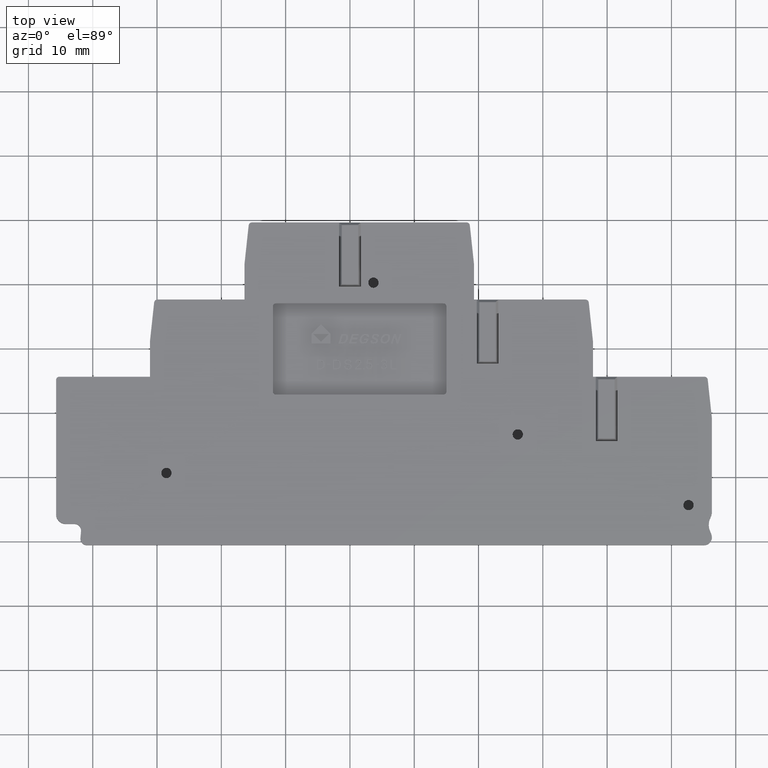
[diagram: clean part render]
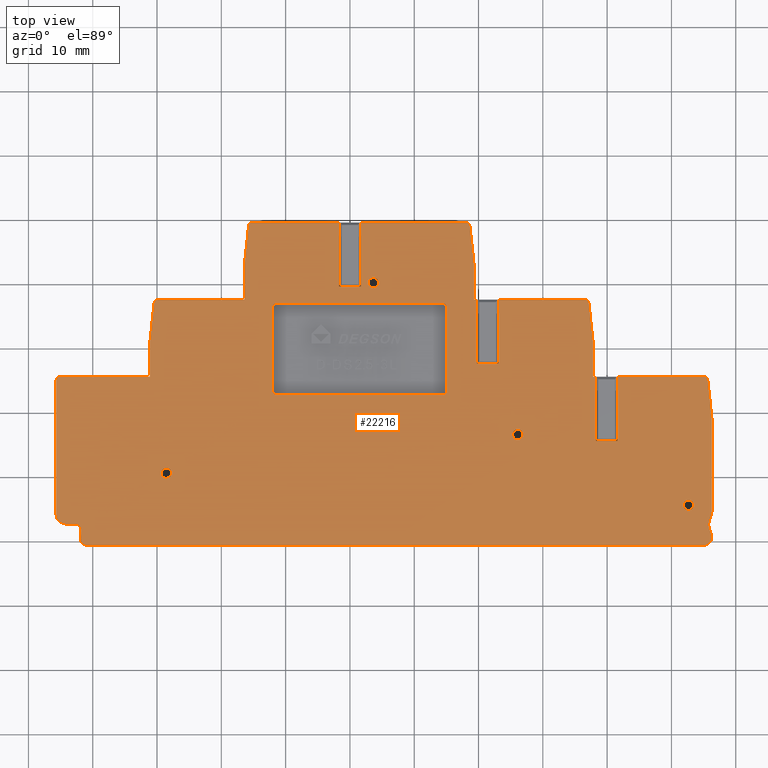
[diagram: same view with one face highlighted and labeled with its STEP entity id]
A machine part, top view. The second image highlights one B-rep face of the part: STEP entity #22216.
In plain terms, the highlighted planar face has unit normal (0, 0, -1).
Its self-contained STEP definition (entity closure, byte-faithful):
#486=PLANE('',#23593);
#927=CIRCLE('',#22852,1.);
#929=CIRCLE('',#22856,1.5);
#930=CIRCLE('',#22858,0.999999999999994);
#1061=CIRCLE('',#23412,0.5);
#1063=CIRCLE('',#23416,0.5);
#1065=CIRCLE('',#23420,0.5);
#1067=CIRCLE('',#23424,0.5);
#1070=CIRCLE('',#23430,0.799999999999997);
#1072=CIRCLE('',#23434,0.800000000000001);
#1074=CIRCLE('',#23438,0.8);
#1076=CIRCLE('',#23442,0.800000000000001);
#1078=CIRCLE('',#23445,1.2);
#1079=CIRCLE('',#23447,2.);
#1081=CIRCLE('',#23450,2.);
#1083=CIRCLE('',#23453,2.5);
#1102=CIRCLE('',#23494,0.5);
#1103=CIRCLE('',#23498,2.);
#1106=CIRCLE('',#23503,0.5);
#1107=CIRCLE('',#23507,2.);
#1110=CIRCLE('',#23512,0.5);
#1111=CIRCLE('',#23518,0.5);
#1114=CIRCLE('',#23523,2.);
#1115=CIRCLE('',#23530,0.5);
#1118=CIRCLE('',#23535,2.);
#1119=CIRCLE('',#23542,0.5);
#1122=CIRCLE('',#23547,2.);
#1520=LINE('',#29912,#4058);
#1525=LINE('',#29931,#4063);
#2586=LINE('',#33186,#5124);
#2590=LINE('',#33198,#5128);
#2594=LINE('',#33210,#5132);
#2598=LINE('',#33222,#5136);
#2605=LINE('',#33328,#5143);
#2609=LINE('',#33340,#5147);
#2614=LINE('',#33350,#5152);
#2616=LINE('',#33358,#5154);
#2620=LINE('',#33370,#5158);
#2625=LINE('',#33380,#5163);
#2627=LINE('',#33388,#5165);
#2631=LINE('',#33400,#5169);
#2635=LINE('',#33408,#5173);
#2653=LINE('',#33447,#5191);
#2656=LINE('',#33457,#5194);
#2664=LINE('',#33473,#5202);
#2668=LINE('',#33481,#5206);
#2678=LINE('',#33504,#5216);
#2683=LINE('',#33518,#5221);
#2691=LINE('',#33534,#5229);
#2695=LINE('',#33542,#5233);
#2705=LINE('',#33565,#5243);
#2710=LINE('',#33579,#5248);
#2717=LINE('',#33593,#5255);
#2730=LINE('',#33619,#5268);
#2737=LINE('',#33633,#5275);
#2747=LINE('',#33653,#5285);
#2754=LINE('',#33667,#5292);
#2761=LINE('',#33680,#5299);
#2763=LINE('',#33683,#5301);
#2765=LINE('',#33686,#5303);
#2782=LINE('',#33725,#5320);
#2783=LINE('',#33898,#5321);
#4058=VECTOR('',#24360,1000.);
#4063=VECTOR('',#24379,1000.);
#5124=VECTOR('',#26548,1000.);
#5128=VECTOR('',#26560,1000.);
#5132=VECTOR('',#26572,1000.);
#5136=VECTOR('',#26584,1000.);
#5143=VECTOR('',#26721,1000.);
#5147=VECTOR('',#26733,1000.);
#5152=VECTOR('',#26740,1000.);
#5154=VECTOR('',#26750,1000.);
#5158=VECTOR('',#26762,1000.);
#5163=VECTOR('',#26769,1000.);
#5165=VECTOR('',#26779,1000.);
#5169=VECTOR('',#26791,1000.);
#5173=VECTOR('',#26795,1000.);
#5191=VECTOR('',#26827,1000.);
#5194=VECTOR('',#26838,1000.);
#5202=VECTOR('',#26848,1000.);
#5206=VECTOR('',#26852,1000.);
#5216=VECTOR('',#26876,1000.);
#5221=VECTOR('',#26889,1000.);
#5229=VECTOR('',#26899,1000.);
#5233=VECTOR('',#26903,1000.);
#5243=VECTOR('',#26927,1000.);
#5248=VECTOR('',#26940,1000.);
#5255=VECTOR('',#26951,1000.);
#5268=VECTOR('',#26976,1000.);
#5275=VECTOR('',#26987,1000.);
#5285=VECTOR('',#27007,1000.);
#5292=VECTOR('',#27018,1000.);
#5299=VECTOR('',#27033,1000.);
#5301=VECTOR('',#27037,1000.);
#5303=VECTOR('',#27041,1000.);
#5320=VECTOR('',#27090,1000.);
#5321=VECTOR('',#27101,1000.);
#9619=ORIENTED_EDGE('',*,*,#13169,.F.);
#9620=ORIENTED_EDGE('',*,*,#13166,.T.);
#9621=ORIENTED_EDGE('',*,*,#14800,.F.);
#9622=ORIENTED_EDGE('',*,*,#14534,.T.);
#9623=ORIENTED_EDGE('',*,*,#14540,.T.);
#9624=ORIENTED_EDGE('',*,*,#14543,.T.);
#9625=ORIENTED_EDGE('',*,*,#14537,.T.);
#9626=ORIENTED_EDGE('',*,*,#14760,.F.);
#9627=ORIENTED_EDGE('',*,*,#14685,.T.);
#9628=ORIENTED_EDGE('',*,*,#14681,.T.);
#9629=ORIENTED_EDGE('',*,*,#14678,.T.);
#9630=ORIENTED_EDGE('',*,*,#14669,.F.);
#9631=ORIENTED_EDGE('',*,*,#14732,.F.);
#9632=ORIENTED_EDGE('',*,*,#14739,.T.);
#9633=ORIENTED_EDGE('',*,*,#14725,.F.);
#9634=ORIENTED_EDGE('',*,*,#14665,.F.);
#9635=ORIENTED_EDGE('',*,*,#14657,.F.);
#9636=ORIENTED_EDGE('',*,*,#14654,.T.);
#9637=ORIENTED_EDGE('',*,*,#14650,.T.);
#9638=ORIENTED_EDGE('',*,*,#14647,.T.);
#9639=ORIENTED_EDGE('',*,*,#14638,.F.);
#9640=ORIENTED_EDGE('',*,*,#14715,.F.);
#9641=ORIENTED_EDGE('',*,*,#14741,.T.);
#9642=ORIENTED_EDGE('',*,*,#14708,.T.);
#9643=ORIENTED_EDGE('',*,*,#14634,.F.);
#9644=ORIENTED_EDGE('',*,*,#14626,.F.);
#9645=ORIENTED_EDGE('',*,*,#14623,.T.);
#9646=ORIENTED_EDGE('',*,*,#14621,.T.);
#9647=ORIENTED_EDGE('',*,*,#14616,.T.);
#9648=ORIENTED_EDGE('',*,*,#14601,.F.);
#9649=ORIENTED_EDGE('',*,*,#14695,.F.);
#9650=ORIENTED_EDGE('',*,*,#14743,.T.);
#9651=ORIENTED_EDGE('',*,*,#14688,.F.);
#9652=ORIENTED_EDGE('',*,*,#14597,.F.);
#9653=ORIENTED_EDGE('',*,*,#14595,.T.);
#9654=ORIENTED_EDGE('',*,*,#14591,.T.);
#9655=ORIENTED_EDGE('',*,*,#14588,.T.);
#9656=ORIENTED_EDGE('',*,*,#14587,.F.);
#9657=ORIENTED_EDGE('',*,*,#14582,.F.);
#9658=ORIENTED_EDGE('',*,*,#14580,.T.);
#9659=ORIENTED_EDGE('',*,*,#14576,.T.);
#9660=ORIENTED_EDGE('',*,*,#14573,.T.);
#9661=ORIENTED_EDGE('',*,*,#14572,.F.);
#9662=ORIENTED_EDGE('',*,*,#14567,.F.);
#9663=ORIENTED_EDGE('',*,*,#14565,.T.);
#9664=ORIENTED_EDGE('',*,*,#14561,.F.);
#9665=ORIENTED_EDGE('',*,*,#13174,.F.);
#9666=ORIENTED_EDGE('',*,*,#13178,.F.);
#9667=ORIENTED_EDGE('',*,*,#13175,.F.);
#9668=ORIENTED_EDGE('',*,*,#14525,.F.);
#9669=ORIENTED_EDGE('',*,*,#14529,.F.);
#9670=ORIENTED_EDGE('',*,*,#14531,.F.);
#9671=ORIENTED_EDGE('',*,*,#14527,.F.);
#9672=ORIENTED_EDGE('',*,*,#14522,.F.);
#9673=ORIENTED_EDGE('',*,*,#14500,.F.);
#9674=ORIENTED_EDGE('',*,*,#14504,.F.);
#9675=ORIENTED_EDGE('',*,*,#14507,.F.);
#9676=ORIENTED_EDGE('',*,*,#14510,.F.);
#9677=ORIENTED_EDGE('',*,*,#14513,.F.);
#9678=ORIENTED_EDGE('',*,*,#14516,.F.);
#9679=ORIENTED_EDGE('',*,*,#14519,.F.);
#13166=EDGE_CURVE('',#16451,#16450,#927,.T.);
#13169=EDGE_CURVE('',#16451,#16453,#1520,.T.);
#13174=EDGE_CURVE('',#16457,#16455,#929,.T.);
#13175=EDGE_CURVE('',#16453,#16458,#930,.T.);
#13178=EDGE_CURVE('',#16458,#16457,#1525,.T.);
#14500=EDGE_CURVE('',#17366,#17367,#1061,.T.);
#14504=EDGE_CURVE('',#17370,#17366,#2586,.T.);
#14507=EDGE_CURVE('',#17372,#17370,#1063,.T.);
#14510=EDGE_CURVE('',#17374,#17372,#2590,.T.);
#14513=EDGE_CURVE('',#17376,#17374,#1065,.T.);
#14516=EDGE_CURVE('',#17378,#17376,#2594,.T.);
#14519=EDGE_CURVE('',#17380,#17378,#1067,.T.);
#14522=EDGE_CURVE('',#17367,#17380,#2598,.T.);
#14525=EDGE_CURVE('',#17383,#17383,#1070,.T.);
#14527=EDGE_CURVE('',#17385,#17385,#1072,.T.);
#14529=EDGE_CURVE('',#17387,#17387,#1074,.T.);
#14531=EDGE_CURVE('',#17389,#17389,#1076,.T.);
#14534=EDGE_CURVE('',#17393,#17392,#1078,.T.);
#14537=EDGE_CURVE('',#17396,#17394,#1079,.T.);
#14540=EDGE_CURVE('',#17392,#17398,#1081,.T.);
#14543=EDGE_CURVE('',#17398,#17396,#1083,.T.);
#14561=EDGE_CURVE('',#16455,#17416,#2605,.T.);
#14565=EDGE_CURVE('',#17419,#17416,#1102,.T.);
#14567=EDGE_CURVE('',#17419,#17420,#2609,.T.);
#14572=EDGE_CURVE('',#17420,#17422,#2614,.T.);
#14573=EDGE_CURVE('',#17424,#17422,#1103,.T.);
#14576=EDGE_CURVE('',#17426,#17424,#2616,.T.);
#14580=EDGE_CURVE('',#17429,#17426,#1106,.T.);
#14582=EDGE_CURVE('',#17429,#17430,#2620,.T.);
#14587=EDGE_CURVE('',#17430,#17432,#2625,.T.);
#14588=EDGE_CURVE('',#17434,#17432,#1107,.T.);
#14591=EDGE_CURVE('',#17436,#17434,#2627,.T.);
#14595=EDGE_CURVE('',#17439,#17436,#1110,.T.);
#14597=EDGE_CURVE('',#17439,#17440,#2631,.T.);
#14601=EDGE_CURVE('',#17443,#17444,#2635,.T.);
#14616=EDGE_CURVE('',#17454,#17444,#1111,.T.);
#14621=EDGE_CURVE('',#17456,#17454,#2653,.T.);
#14623=EDGE_CURVE('',#17459,#17456,#1114,.T.);
#14626=EDGE_CURVE('',#17459,#17461,#2656,.T.);
#14634=EDGE_CURVE('',#17461,#17468,#2664,.T.);
#14638=EDGE_CURVE('',#17471,#17462,#2668,.T.);
#14647=EDGE_CURVE('',#17476,#17462,#1115,.T.);
#14650=EDGE_CURVE('',#17478,#17476,#2678,.T.);
#14654=EDGE_CURVE('',#17481,#17478,#1118,.T.);
#14657=EDGE_CURVE('',#17481,#17483,#2683,.T.);
#14665=EDGE_CURVE('',#17483,#17490,#2691,.T.);
#14669=EDGE_CURVE('',#17493,#17484,#2695,.T.);
#14678=EDGE_CURVE('',#17498,#17484,#1119,.T.);
#14681=EDGE_CURVE('',#17500,#17498,#2705,.T.);
#14685=EDGE_CURVE('',#17503,#17500,#1122,.T.);
#14688=EDGE_CURVE('',#17440,#17505,#2710,.T.);
#14695=EDGE_CURVE('',#17509,#17443,#2717,.T.);
#14708=EDGE_CURVE('',#17517,#17468,#2730,.T.);
#14715=EDGE_CURVE('',#17521,#17471,#2737,.T.);
#14725=EDGE_CURVE('',#17490,#17527,#2747,.T.);
#14732=EDGE_CURVE('',#17531,#17493,#2754,.T.);
#14739=EDGE_CURVE('',#17531,#17527,#2761,.T.);
#14741=EDGE_CURVE('',#17521,#17517,#2763,.T.);
#14743=EDGE_CURVE('',#17509,#17505,#2765,.T.);
#14760=EDGE_CURVE('',#17503,#17394,#2782,.T.);
#14800=EDGE_CURVE('',#17393,#16450,#2783,.T.);
#16450=VERTEX_POINT('',#29905);
#16451=VERTEX_POINT('',#29907);
#16453=VERTEX_POINT('',#29913);
#16455=VERTEX_POINT('',#29918);
#16457=VERTEX_POINT('',#29922);
#16458=VERTEX_POINT('',#29926);
#17366=VERTEX_POINT('',#33178);
#17367=VERTEX_POINT('',#33179);
#17370=VERTEX_POINT('',#33187);
#17372=VERTEX_POINT('',#33193);
#17374=VERTEX_POINT('',#33199);
#17376=VERTEX_POINT('',#33205);
#17378=VERTEX_POINT('',#33211);
#17380=VERTEX_POINT('',#33217);
#17383=VERTEX_POINT('',#33229);
#17385=VERTEX_POINT('',#33235);
#17387=VERTEX_POINT('',#33241);
#17389=VERTEX_POINT('',#33247);
#17392=VERTEX_POINT('',#33253);
#17393=VERTEX_POINT('',#33255);
#17394=VERTEX_POINT('',#33259);
#17396=VERTEX_POINT('',#33262);
#17398=VERTEX_POINT('',#33268);
#17416=VERTEX_POINT('',#33329);
#17419=VERTEX_POINT('',#33337);
#17420=VERTEX_POINT('',#33341);
#17422=VERTEX_POINT('',#33347);
#17424=VERTEX_POINT('',#33353);
#17426=VERTEX_POINT('',#33359);
#17429=VERTEX_POINT('',#33367);
#17430=VERTEX_POINT('',#33371);
#17432=VERTEX_POINT('',#33377);
#17434=VERTEX_POINT('',#33383);
#17436=VERTEX_POINT('',#33389);
#17439=VERTEX_POINT('',#33397);
#17440=VERTEX_POINT('',#33401);
#17443=VERTEX_POINT('',#33407);
#17444=VERTEX_POINT('',#33409);
#17454=VERTEX_POINT('',#33438);
#17456=VERTEX_POINT('',#33444);
#17459=VERTEX_POINT('',#33452);
#17461=VERTEX_POINT('',#33458);
#17462=VERTEX_POINT('',#33462);
#17468=VERTEX_POINT('',#33474);
#17471=VERTEX_POINT('',#33480);
#17476=VERTEX_POINT('',#33499);
#17478=VERTEX_POINT('',#33505);
#17481=VERTEX_POINT('',#33513);
#17483=VERTEX_POINT('',#33519);
#17484=VERTEX_POINT('',#33523);
#17490=VERTEX_POINT('',#33535);
#17493=VERTEX_POINT('',#33541);
#17498=VERTEX_POINT('',#33560);
#17500=VERTEX_POINT('',#33566);
#17503=VERTEX_POINT('',#33574);
#17505=VERTEX_POINT('',#33580);
#17509=VERTEX_POINT('',#33592);
#17517=VERTEX_POINT('',#33620);
#17521=VERTEX_POINT('',#33632);
#17527=VERTEX_POINT('',#33654);
#17531=VERTEX_POINT('',#33666);
#19618=EDGE_LOOP('',(#9619,#9620,#9621,#9622,#9623,#9624,#9625,#9626,#9627,
#9628,#9629,#9630,#9631,#9632,#9633,#9634,#9635,#9636,#9637,#9638,#9639,
#9640,#9641,#9642,#9643,#9644,#9645,#9646,#9647,#9648,#9649,#9650,#9651,
#9652,#9653,#9654,#9655,#9656,#9657,#9658,#9659,#9660,#9661,#9662,#9663,
#9664,#9665,#9666,#9667));
#19619=EDGE_LOOP('',(#9668));
#19620=EDGE_LOOP('',(#9669));
#19621=EDGE_LOOP('',(#9670));
#19622=EDGE_LOOP('',(#9671));
#19623=EDGE_LOOP('',(#9672,#9673,#9674,#9675,#9676,#9677,#9678,#9679));
#20900=FACE_BOUND('',#19618,.T.);
#20901=FACE_BOUND('',#19619,.T.);
#20902=FACE_BOUND('',#19620,.T.);
#20903=FACE_BOUND('',#19621,.T.);
#20904=FACE_BOUND('',#19622,.T.);
#20905=FACE_BOUND('',#19623,.T.);
#22216=ADVANCED_FACE('',(#20900,#20901,#20902,#20903,#20904,#20905),#486,
 .F.);
#22852=AXIS2_PLACEMENT_3D('',#29906,#24354,#24355);
#22856=AXIS2_PLACEMENT_3D('',#29923,#24368,#24369);
#22858=AXIS2_PLACEMENT_3D('',#29925,#24372,#24373);
#23412=AXIS2_PLACEMENT_3D('',#33177,#26540,#26541);
#23416=AXIS2_PLACEMENT_3D('',#33192,#26553,#26554);
#23420=AXIS2_PLACEMENT_3D('',#33204,#26565,#26566);
#23424=AXIS2_PLACEMENT_3D('',#33216,#26577,#26578);
#23430=AXIS2_PLACEMENT_3D('',#33228,#26592,#26593);
#23434=AXIS2_PLACEMENT_3D('',#33234,#26600,#26601);
#23438=AXIS2_PLACEMENT_3D('',#33240,#26608,#26609);
#23442=AXIS2_PLACEMENT_3D('',#33246,#26616,#26617);
#23445=AXIS2_PLACEMENT_3D('',#33254,#26623,#26624);
#23447=AXIS2_PLACEMENT_3D('',#33261,#26629,#26630);
#23450=AXIS2_PLACEMENT_3D('',#33267,#26636,#26637);
#23453=AXIS2_PLACEMENT_3D('',#33273,#26643,#26644);
#23494=AXIS2_PLACEMENT_3D('',#33336,#26728,#26729);
#23498=AXIS2_PLACEMENT_3D('',#33352,#26743,#26744);
#23503=AXIS2_PLACEMENT_3D('',#33366,#26757,#26758);
#23507=AXIS2_PLACEMENT_3D('',#33382,#26772,#26773);
#23512=AXIS2_PLACEMENT_3D('',#33396,#26786,#26787);
#23518=AXIS2_PLACEMENT_3D('',#33437,#26818,#26819);
#23523=AXIS2_PLACEMENT_3D('',#33451,#26832,#26833);
#23530=AXIS2_PLACEMENT_3D('',#33498,#26869,#26870);
#23535=AXIS2_PLACEMENT_3D('',#33512,#26883,#26884);
#23542=AXIS2_PLACEMENT_3D('',#33559,#26920,#26921);
#23547=AXIS2_PLACEMENT_3D('',#33573,#26934,#26935);
#23593=AXIS2_PLACEMENT_3D('',#33900,#27103,#27104);
#24354=DIRECTION('',(0.,0.,1.));
#24355=DIRECTION('',(-1.,0.,0.));
#24360=DIRECTION('',(0.0871557434716022,0.996194698028409,0.));
#24368=DIRECTION('',(0.,0.,-1.));
#24369=DIRECTION('',(-1.,0.,0.));
#24372=DIRECTION('',(0.,0.,1.));
#24373=DIRECTION('',(-1.,0.,0.));
#24379=DIRECTION('',(-1.,1.49846867589017E-14,0.));
#26540=DIRECTION('',(0.,0.,1.));
#26541=DIRECTION('',(1.,0.,0.));
#26548=DIRECTION('',(-1.,0.,0.));
#26553=DIRECTION('',(0.,0.,1.));
#26554=DIRECTION('',(1.,0.,0.));
#26560=DIRECTION('',(0.,1.,0.));
#26565=DIRECTION('',(0.,0.,1.));
#26566=DIRECTION('',(-1.,0.,0.));
#26572=DIRECTION('',(1.,0.,0.));
#26577=DIRECTION('',(0.,0.,1.));
#26578=DIRECTION('',(-1.,0.,0.));
#26584=DIRECTION('',(0.,-1.,0.));
#26592=DIRECTION('',(0.,0.,1.));
#26593=DIRECTION('',(1.,0.,0.));
#26600=DIRECTION('',(0.,0.,1.));
#26601=DIRECTION('',(1.,0.,0.));
#26608=DIRECTION('',(0.,0.,1.));
#26609=DIRECTION('',(1.,0.,0.));
#26616=DIRECTION('',(0.,0.,1.));
#26617=DIRECTION('',(1.,0.,0.));
#26623=DIRECTION('',(0.,0.,1.));
#26624=DIRECTION('',(-1.,0.,0.));
#26629=DIRECTION('',(0.,0.,1.));
#26630=DIRECTION('',(-1.,0.,0.));
#26636=DIRECTION('',(0.,0.,1.));
#26637=DIRECTION('',(-1.,0.,0.));
#26643=DIRECTION('',(0.,0.,-1.));
#26644=DIRECTION('',(-1.,0.,0.));
#26721=DIRECTION('',(-3.75856753128315E-15,1.,0.));
#26728=DIRECTION('',(0.,0.,1.));
#26729=DIRECTION('',(-1.,0.,0.));
#26733=DIRECTION('',(1.,2.36016799452626E-15,0.));
#26740=DIRECTION('',(-3.75856753128315E-15,1.,0.));
#26743=DIRECTION('',(0.,0.,1.));
#26744=DIRECTION('',(-1.,0.,0.));
#26750=DIRECTION('',(-0.107073199719949,-0.994251140256692,0.));
#26757=DIRECTION('',(0.,0.,1.));
#26758=DIRECTION('',(-1.,0.,0.));
#26762=DIRECTION('',(1.,2.36016799452626E-15,0.));
#26769=DIRECTION('',(-3.75856753128314E-15,1.,0.));
#26772=DIRECTION('',(0.,0.,1.));
#26773=DIRECTION('',(-1.,0.,0.));
#26779=DIRECTION('',(-0.107073199719949,-0.994251140256692,0.));
#26786=DIRECTION('',(0.,0.,1.));
#26787=DIRECTION('',(-1.,0.,0.));
#26791=DIRECTION('',(1.,2.28380961825284E-15,0.));
#26795=DIRECTION('',(1.,2.28380961825284E-15,0.));
#26818=DIRECTION('',(0.,0.,1.));
#26819=DIRECTION('',(-1.,0.,0.));
#26827=DIRECTION('',(-0.107073199719953,0.994251140256691,0.));
#26832=DIRECTION('',(0.,0.,1.));
#26833=DIRECTION('',(-1.,0.,0.));
#26838=DIRECTION('',(3.75856754205758E-15,-1.,0.));
#26848=DIRECTION('',(1.,0.,0.));
#26852=DIRECTION('',(1.,0.,0.));
#26869=DIRECTION('',(0.,0.,1.));
#26870=DIRECTION('',(-1.,0.,0.));
#26876=DIRECTION('',(-0.107073199719951,0.994251140256692,0.));
#26883=DIRECTION('',(0.,0.,1.));
#26884=DIRECTION('',(-1.,0.,0.));
#26889=DIRECTION('',(3.46944694200445E-15,-1.,0.));
#26899=DIRECTION('',(1.,0.,0.));
#26903=DIRECTION('',(1.,0.,0.));
#26920=DIRECTION('',(0.,0.,1.));
#26921=DIRECTION('',(-1.,0.,0.));
#26927=DIRECTION('',(-0.107073199719951,0.994251140256692,0.));
#26934=DIRECTION('',(0.,0.,1.));
#26935=DIRECTION('',(-1.,0.,0.));
#26940=DIRECTION('',(0.,-1.,0.));
#26951=DIRECTION('',(0.,1.,0.));
#26976=DIRECTION('',(0.,1.,0.));
#26987=DIRECTION('',(0.,1.,0.));
#27007=DIRECTION('',(0.,-1.,0.));
#27018=DIRECTION('',(0.,1.,0.));
#27033=DIRECTION('',(-1.,0.,0.));
#27037=DIRECTION('',(-1.,0.,0.));
#27041=DIRECTION('',(-1.,0.,0.));
#27090=DIRECTION('',(3.46944694200445E-15,-1.,0.));
#27101=DIRECTION('',(-1.,0.,0.));
#27103=DIRECTION('',(0.,0.,-1.));
#27104=DIRECTION('',(-1.,0.,0.));
#29905=CARTESIAN_POINT('',(-40.916902825996,-40.5999999999999,52.2));
#29906=CARTESIAN_POINT('',(-40.916902825996,-39.5999999999999,52.2));
#29907=CARTESIAN_POINT('',(-41.9130975240244,-39.5128442565283,52.2));
#29912=CARTESIAN_POINT('',(-38.1640537258614,3.33892208315363,52.2));
#29913=CARTESIAN_POINT('',(-41.8146121915713,-38.3871517648645,52.2));
#29918=CARTESIAN_POINT('',(-45.6999999996991,-35.8000000000001,52.2));
#29922=CARTESIAN_POINT('',(-44.1999999996991,-37.3000000000001,52.2));
#29923=CARTESIAN_POINT('',(-44.1999999996991,-35.8000000000001,52.2));
#29925=CARTESIAN_POINT('',(-42.8108072376747,-38.3,52.2));
#29926=CARTESIAN_POINT('',(-42.8108030116903,-37.3,52.2));
#29931=CARTESIAN_POINT('',(-5.58928816107045E-13,-37.3000000000006,52.2));
#33177=CARTESIAN_POINT('',(-11.5000000000003,-3.50338426221932,52.2));
#33178=CARTESIAN_POINT('',(-11.5000000000003,-3.00338426221932,52.2));
#33179=CARTESIAN_POINT('',(-12.0000000000003,-3.50338426221932,52.2));
#33186=CARTESIAN_POINT('',(14.4999999999997,-3.00338426221932,52.2));
#33187=CARTESIAN_POINT('',(14.4999999999997,-3.00338426221932,52.2));
#33192=CARTESIAN_POINT('',(14.4999999999997,-3.50338426221932,52.2));
#33193=CARTESIAN_POINT('',(14.9999999999997,-3.50338426221932,52.2));
#33198=CARTESIAN_POINT('',(14.9999999999997,-16.7033842622192,52.2));
#33199=CARTESIAN_POINT('',(14.9999999999997,-16.7033842622192,52.2));
#33204=CARTESIAN_POINT('',(14.4999999999997,-16.7033842622192,52.2));
#33205=CARTESIAN_POINT('',(14.4999999999997,-17.2033842622192,52.2));
#33210=CARTESIAN_POINT('',(-11.5000000000003,-17.2033842622192,52.2));
#33211=CARTESIAN_POINT('',(-11.5000000000003,-17.2033842622192,52.2));
#33216=CARTESIAN_POINT('',(-11.5000000000003,-16.7033842622192,52.2));
#33217=CARTESIAN_POINT('',(-12.0000000000003,-16.7033842622192,52.2));
#33222=CARTESIAN_POINT('',(-12.0000000000003,-3.50338426221932,52.2));
#33228=CARTESIAN_POINT('',(52.6500013050335,-34.399998488285,52.2));
#33229=CARTESIAN_POINT('',(53.4500013050335,-34.399998488285,52.2));
#33234=CARTESIAN_POINT('',(-28.5499986944379,-29.3999984882853,52.2));
#33235=CARTESIAN_POINT('',(-27.7499986944379,-29.3999984882853,52.2));
#33240=CARTESIAN_POINT('',(3.65000000000001,0.199999987503566,52.2));
#33241=CARTESIAN_POINT('',(4.45000000000001,0.199999987503566,52.2));
#33246=CARTESIAN_POINT('',(26.0999997950337,-23.399998940191,52.2));
#33247=CARTESIAN_POINT('',(26.8999997950337,-23.399998940191,52.2));
#33253=CARTESIAN_POINT('',(56.2852577367565,-39.2545674759433,52.2));
#33254=CARTESIAN_POINT('',(55.0941030948453,-39.3999999999999,52.2));
#33255=CARTESIAN_POINT('',(55.0941030948453,-40.5999999999999,52.2));
#33259=CARTESIAN_POINT('',(56.300000000238,-35.3738493904196,52.2000000020164));
#33261=CARTESIAN_POINT('',(54.300000000238,-35.3738493904196,52.2));
#33262=CARTESIAN_POINT('',(56.0777777780157,-36.2900950850015,52.2));
#33267=CARTESIAN_POINT('',(54.3000000002379,-39.4969550160376,52.2));
#33268=CARTESIAN_POINT('',(56.0777777780157,-38.5807093214559,52.2));
#33273=CARTESIAN_POINT('',(58.3000000002379,-37.4354022032287,52.2));
#33328=CARTESIAN_POINT('',(-45.7000000000002,-1.7176653617964E-13,52.2));
#33329=CARTESIAN_POINT('',(-45.7000000000001,-14.8999970315313,52.2));
#33336=CARTESIAN_POINT('',(-45.2000000000001,-14.8999999999998,52.2));
#33337=CARTESIAN_POINT('',(-45.1999965118655,-14.3999999999998,52.2));
#33340=CARTESIAN_POINT('',(-45.7000000000001,-14.3999999999998,52.2));
#33341=CARTESIAN_POINT('',(-31.1000000000001,-14.3999999999998,52.2));
#33347=CARTESIAN_POINT('',(-31.1000000000001,-9.00738186134988,52.2));
#33350=CARTESIAN_POINT('',(-31.1000000000001,-14.3999999999998,52.2));
#33352=CARTESIAN_POINT('',(-29.1000000000001,-9.00738186134987,52.2));
#33353=CARTESIAN_POINT('',(-31.0885022805135,-8.79323546190997,52.2));
#33358=CARTESIAN_POINT('',(-30.4000000000001,-2.39999999999998,52.2));
#33359=CARTESIAN_POINT('',(-30.4480806738614,-2.84646340014,52.2));
#33366=CARTESIAN_POINT('',(-29.950955103733,-2.89999999999998,52.2));
#33367=CARTESIAN_POINT('',(-29.950955103733,-2.39999999999998,52.2));
#33370=CARTESIAN_POINT('',(-31.1000000000001,-2.39999999999998,52.2));
#33371=CARTESIAN_POINT('',(-16.4000000000001,-2.39999999999994,52.2));
#33377=CARTESIAN_POINT('',(-16.4000000000001,2.99261813864997,52.2));
#33380=CARTESIAN_POINT('',(-16.4000000000001,-2.39999999999994,52.2));
#33382=CARTESIAN_POINT('',(-14.4000000000001,2.99261813864997,52.2));
#33383=CARTESIAN_POINT('',(-16.3885022805135,3.20676453808987,52.2));
#33388=CARTESIAN_POINT('',(-15.7000000000001,9.59999999999987,52.2));
#33389=CARTESIAN_POINT('',(-15.7480806738614,9.15353659985984,52.2));
#33396=CARTESIAN_POINT('',(-15.250955103733,9.09999999999987,52.2));
#33397=CARTESIAN_POINT('',(-15.250955103733,9.59999999999987,52.2));
#33400=CARTESIAN_POINT('',(-16.4000000000002,9.59999999999987,52.2));
#33401=CARTESIAN_POINT('',(-1.67500012629987,9.5999999999999,52.2));
#33407=CARTESIAN_POINT('',(1.67499987370023,9.59999999999991,52.2));
#33408=CARTESIAN_POINT('',(-16.4000000000002,9.59999999999987,52.2));
#33409=CARTESIAN_POINT('',(18.150955103419,9.59999999999994,52.2));
#33437=CARTESIAN_POINT('',(18.150955103419,9.09999999999994,52.2));
#33438=CARTESIAN_POINT('',(18.6480806735474,9.15353659985992,52.2));
#33444=CARTESIAN_POINT('',(19.2885022801996,3.20676453808994,52.2));
#33447=CARTESIAN_POINT('',(19.2999999996862,3.09999999999995,52.2));
#33451=CARTESIAN_POINT('',(17.2999999996862,2.99261813865003,52.2));
#33452=CARTESIAN_POINT('',(19.2999999996862,2.99261813865004,52.2));
#33457=CARTESIAN_POINT('',(19.2999999996861,9.59999999999995,52.2));
#33458=CARTESIAN_POINT('',(19.2999999996862,-2.39999996560025,52.2));
#33462=CARTESIAN_POINT('',(36.6509551022464,-2.39999996560025,52.2));
#33473=CARTESIAN_POINT('',(19.2999999996862,-2.39999996560025,52.2));
#33474=CARTESIAN_POINT('',(19.7250473258308,-2.39999996560025,52.2));
#33480=CARTESIAN_POINT('',(23.0750473258309,-2.39999996560025,52.2));
#33481=CARTESIAN_POINT('',(19.2999999996862,-2.39999996560025,52.2));
#33498=CARTESIAN_POINT('',(36.6509551022464,-2.89999996560025,52.2));
#33499=CARTESIAN_POINT('',(37.1480806723747,-2.84646336574027,52.2));
#33504=CARTESIAN_POINT('',(37.7999999985135,-8.89999996560025,52.2));
#33505=CARTESIAN_POINT('',(37.7885022790269,-8.79323542751027,52.2));
#33512=CARTESIAN_POINT('',(35.7999999985135,-9.00738182695017,52.2));
#33513=CARTESIAN_POINT('',(37.7999999985135,-9.00738182695017,52.2));
#33518=CARTESIAN_POINT('',(37.7999999985135,-2.39999996560025,52.2));
#33519=CARTESIAN_POINT('',(37.7999999985135,-14.4000000000121,52.2));
#33523=CARTESIAN_POINT('',(55.1509551021977,-14.3999999982885,52.2000000020164));
#33534=CARTESIAN_POINT('',(37.7999999985135,-14.3999999999997,52.2));
#33535=CARTESIAN_POINT('',(38.2250473258308,-14.3999999999997,52.2));
#33541=CARTESIAN_POINT('',(41.5750473257823,-14.3999999982885,52.2000000020164));
#33542=CARTESIAN_POINT('',(37.7999999996375,-14.3999999982885,52.2000000020164));
#33559=CARTESIAN_POINT('',(55.1509551021977,-14.8999999982885,52.2000000020164));
#33560=CARTESIAN_POINT('',(55.6480806723261,-14.8464633984286,52.2000000020164));
#33565=CARTESIAN_POINT('',(56.2999999984648,-20.8999999982885,52.2000000020164));
#33566=CARTESIAN_POINT('',(56.2885022789782,-20.7932354601986,52.2));
#33573=CARTESIAN_POINT('',(54.2999999984648,-21.0073818596385,52.2000000020164));
#33574=CARTESIAN_POINT('',(56.2999999984648,-21.0073818596385,52.2000000020164));
#33579=CARTESIAN_POINT('',(-1.67500012629987,-0.399999999996474,52.2));
#33580=CARTESIAN_POINT('',(-1.67500012629987,-0.399999999996474,52.2));
#33592=CARTESIAN_POINT('',(1.67499987370023,-0.399999999996474,52.2));
#33593=CARTESIAN_POINT('',(1.67499987370023,-0.399999999996474,52.2));
#33619=CARTESIAN_POINT('',(19.7250473258308,-12.3999999686254,52.2));
#33620=CARTESIAN_POINT('',(19.7250473258308,-12.3999999686254,52.2));
#33632=CARTESIAN_POINT('',(23.0750473258309,-12.3999999686254,52.2));
#33633=CARTESIAN_POINT('',(23.0750473258309,-12.3999999686254,52.2));
#33653=CARTESIAN_POINT('',(38.2250473258308,0.,52.2));
#33654=CARTESIAN_POINT('',(38.2250473258308,-24.3999999686254,52.2));
#33666=CARTESIAN_POINT('',(41.5750473257823,-24.3999999686254,52.2000000020164));
#33667=CARTESIAN_POINT('',(41.5750473257823,-24.4000000013137,52.2000000020164));
#33680=CARTESIAN_POINT('',(0.,-24.3999999686254,52.2));
#33683=CARTESIAN_POINT('',(23.0750473258309,-12.3999999686254,52.2));
#33686=CARTESIAN_POINT('',(-1.67500012629987,-0.399999999996474,52.2));
#33725=CARTESIAN_POINT('',(56.2999999984648,-14.3999999982885,52.2000000020164));
#33898=CARTESIAN_POINT('',(56.300000000238,-40.5999999999999,52.2));
#33900=CARTESIAN_POINT('',(0.,0.,52.2));